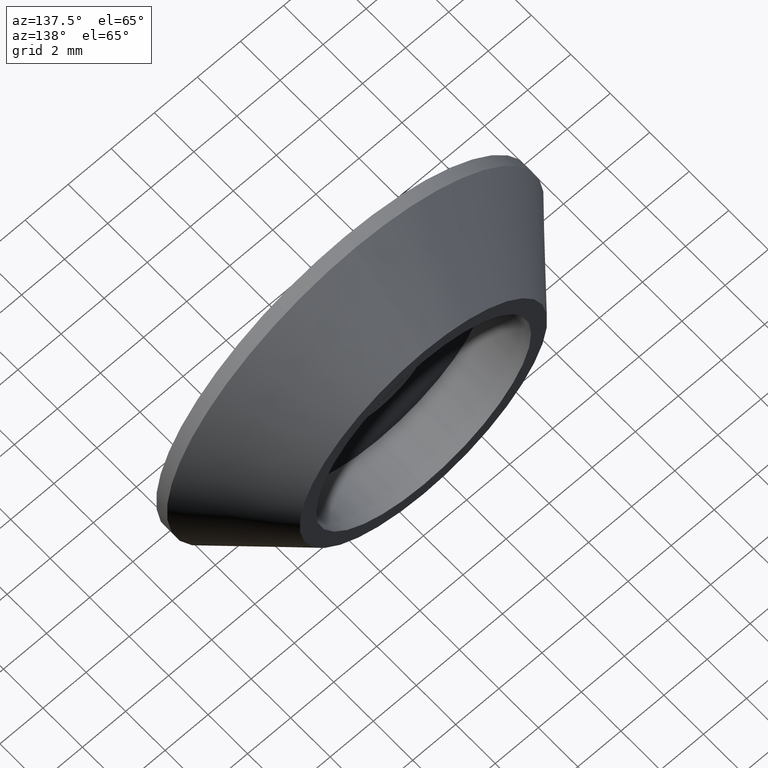
[diagram: clean part render]
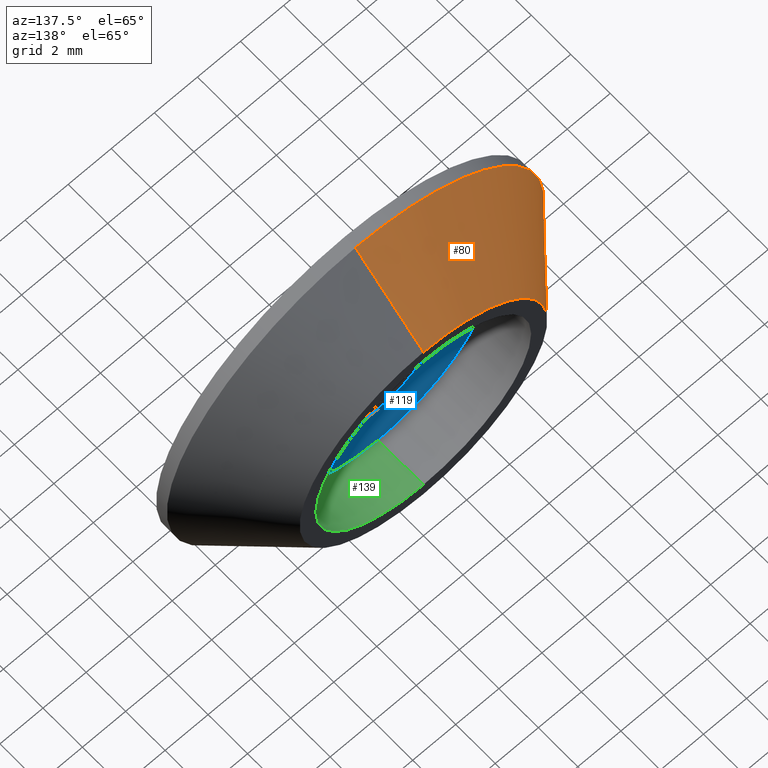
[diagram: same view with three faces highlighted in distinct colors, each labeled with its STEP entity id]
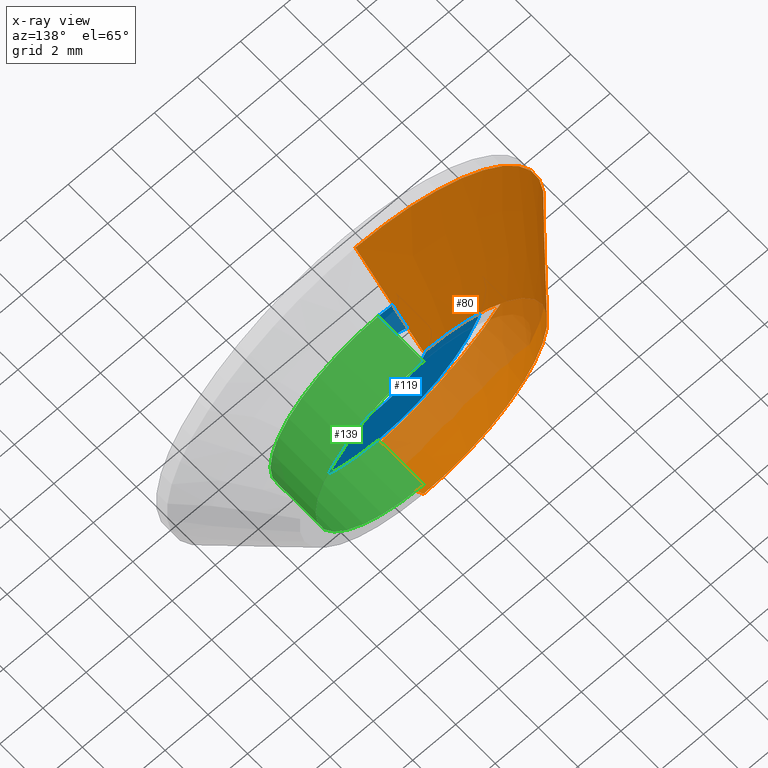
[diagram: x-ray of the same camera — body ghosted, the three highlighted faces saturated]
A machine part, auxiliary view with three faces highlighted in distinct colors.
The next image is the same camera in x-ray (body ghosted, the three faces saturated) — at least one of them is partly hidden behind the body in this view.
Their STEP definitions:

[orange] entity #80 — the highlighted conical surface has half-angle 41.009 deg.
#17 = VERTEX_POINT ( 'NONE', #197 ) ;
#25 = VERTEX_POINT ( 'NONE', #192 ) ;
#26 = VERTEX_POINT ( 'NONE', #185 ) ;
#34 = VERTEX_POINT ( 'NONE', #224 ) ;
#37 = EDGE_CURVE ( 'NONE', #26, #25, #218, .T. ) ;
#39 = EDGE_CURVE ( 'NONE', #17, #34, #60, .T. ) ;
#44 = CIRCLE ( 'NONE', #65, 8.750000000000000000 ) ;
#56 = DIRECTION ( 'NONE',  ( 8.035871629012636900E-017, -0.7546055221635046300, 0.6561787149247867400 ) ) ;
#57 = VECTOR ( 'NONE', #56, 1000.000000000000000 ) ;
#58 = CARTESIAN_POINT ( 'NONE',  ( 7.041719095097280900E-016, 4.000000000000000000, 5.750000000000000000 ) ) ;
#60 = LINE ( 'NONE', #58, #57 ) ;
#62 = VECTOR ( 'NONE', #216, 1000.000000000000000 ) ;
#64 = DIRECTION ( 'NONE',  ( 0.0000000000000000000, -1.000000000000000000, 0.0000000000000000000 ) ) ;
#65 = AXIS2_PLACEMENT_3D ( 'NONE', #83, #228, #227 ) ;
#74 = CIRCLE ( 'NONE', #170, 5.750000000000000000 ) ;
#77 = ORIENTED_EDGE ( 'NONE', *, *, #89, .T. ) ;
#80 = ADVANCED_FACE ( 'NONE', ( #87 ), #85, .T. ) ;
#81 = CARTESIAN_POINT ( 'NONE',  ( 0.0000000000000000000, 4.000000000000000000, 0.0000000000000000000 ) ) ;
#82 = AXIS2_PLACEMENT_3D ( 'NONE', #175, #174, #173 ) ;
#83 = CARTESIAN_POINT ( 'NONE',  ( 0.0000000000000000000, 0.5499999999999983800, 0.0000000000000000000 ) ) ;
#85 = CONICAL_SURFACE ( 'NONE', #82, 5.750000000000000000, 0.7157435896688801900 ) ;
#87 = FACE_OUTER_BOUND ( 'NONE', #151, .T. ) ;
#89 = EDGE_CURVE ( 'NONE', #17, #26, #74, .T. ) ;
#90 = ORIENTED_EDGE ( 'NONE', *, *, #39, .F. ) ;
#92 = ORIENTED_EDGE ( 'NONE', *, *, #37, .T. ) ;
#114 = ORIENTED_EDGE ( 'NONE', *, *, #153, .F. ) ;
#151 = EDGE_LOOP ( 'NONE', ( #90, #77, #92, #114 ) ) ;
#153 = EDGE_CURVE ( 'NONE', #34, #25, #44, .T. ) ;
#169 = DIRECTION ( 'NONE',  ( 0.0000000000000000000, 0.0000000000000000000, -1.000000000000000000 ) ) ;
#170 = AXIS2_PLACEMENT_3D ( 'NONE', #81, #64, #169 ) ;
#173 = DIRECTION ( 'NONE',  ( 0.0000000000000000000, 0.0000000000000000000, -1.000000000000000000 ) ) ;
#174 = DIRECTION ( 'NONE',  ( 0.0000000000000000000, -1.000000000000000000, 0.0000000000000000000 ) ) ;
#175 = CARTESIAN_POINT ( 'NONE',  ( 0.0000000000000000000, 4.000000000000000000, 0.0000000000000000000 ) ) ;
#185 = CARTESIAN_POINT ( 'NONE',  ( 0.0000000000000000000, 4.000000000000000000, -5.750000000000000000 ) ) ;
#192 = CARTESIAN_POINT ( 'NONE',  ( 0.0000000000000000000, 0.5499999999999983800, -8.750000000000000000 ) ) ;
#197 = CARTESIAN_POINT ( 'NONE',  ( 8.878689293818312000E-016, 4.000000000000000000, 5.750000000000000000 ) ) ;
#216 = DIRECTION ( 'NONE',  ( 0.0000000000000000000, -0.7546055221635046300, -0.6561787149247867400 ) ) ;
#217 = CARTESIAN_POINT ( 'NONE',  ( 0.0000000000000000000, 4.000000000000000000, -5.750000000000000000 ) ) ;
#218 = LINE ( 'NONE', #217, #62 ) ;
#224 = CARTESIAN_POINT ( 'NONE',  ( 1.071565949253934100E-015, 0.5499999999999983800, 8.750000000000000000 ) ) ;
#227 = DIRECTION ( 'NONE',  ( 0.0000000000000000000, 0.0000000000000000000, -1.000000000000000000 ) ) ;
#228 = DIRECTION ( 'NONE',  ( 0.0000000000000000000, -1.000000000000000000, 0.0000000000000000000 ) ) ;

[blue] entity #119 — the highlighted planar face has unit normal (0, -1, 0).
#12 = VERTEX_POINT ( 'NONE', #203 ) ;
#19 = VERTEX_POINT ( 'NONE', #107 ) ;
#24 = VERTEX_POINT ( 'NONE', #196 ) ;
#38 = VERTEX_POINT ( 'NONE', #219 ) ;
#40 = EDGE_CURVE ( 'NONE', #19, #24, #191, .T. ) ;
#46 = EDGE_CURVE ( 'NONE', #12, #38, #96, .T. ) ;
#51 = CARTESIAN_POINT ( 'NONE',  ( 0.0000000000000000000, 1.700000000000000200, 0.0000000000000000000 ) ) ;
#68 = DIRECTION ( 'NONE',  ( 0.0000000000000000000, 0.0000000000000000000, -1.000000000000000000 ) ) ;
#69 = DIRECTION ( 'NONE',  ( 0.0000000000000000000, -1.000000000000000000, 0.0000000000000000000 ) ) ;
#70 = CARTESIAN_POINT ( 'NONE',  ( 0.0000000000000000000, 1.700000000000000200, 0.0000000000000000000 ) ) ;
#71 = AXIS2_PLACEMENT_3D ( 'NONE', #70, #69, #68 ) ;
#73 = FACE_BOUND ( 'NONE', #130, .T. ) ;
#96 = CIRCLE ( 'NONE', #71, 5.000000000000000900 ) ;
#97 = DIRECTION ( 'NONE',  ( 0.0000000000000000000, -1.000000000000000000, 0.0000000000000000000 ) ) ;
#107 = CARTESIAN_POINT ( 'NONE',  ( 3.061616997868383100E-016, 1.700000000000000200, 2.500000000000000000 ) ) ;
#119 = ADVANCED_FACE ( 'NONE', ( #171, #73 ), #172, .F. ) ;
#129 = ORIENTED_EDGE ( 'NONE', *, *, #144, .F. ) ;
#130 = EDGE_LOOP ( 'NONE', ( #145, #132 ) ) ;
#131 = ORIENTED_EDGE ( 'NONE', *, *, #46, .F. ) ;
#132 = ORIENTED_EDGE ( 'NONE', *, *, #40, .T. ) ;
#140 = EDGE_LOOP ( 'NONE', ( #129, #131 ) ) ;
#144 = EDGE_CURVE ( 'NONE', #38, #12, #242, .T. ) ;
#145 = ORIENTED_EDGE ( 'NONE', *, *, #182, .T. ) ;
#159 = DIRECTION ( 'NONE',  ( 0.0000000000000000000, 0.0000000000000000000, -1.000000000000000000 ) ) ;
#160 = DIRECTION ( 'NONE',  ( 0.0000000000000000000, -1.000000000000000000, 0.0000000000000000000 ) ) ;
#161 = CARTESIAN_POINT ( 'NONE',  ( -5.000000000000004400, 1.700000000000000200, 0.0000000000000000000 ) ) ;
#162 = AXIS2_PLACEMENT_3D ( 'NONE', #161, #160, #159 ) ;
#171 = FACE_OUTER_BOUND ( 'NONE', #140, .T. ) ;
#172 = PLANE ( 'NONE',  #162 ) ;
#182 = EDGE_CURVE ( 'NONE', #24, #19, #273, .T. ) ;
#186 = DIRECTION ( 'NONE',  ( 0.0000000000000000000, 0.0000000000000000000, -1.000000000000000000 ) ) ;
#191 = CIRCLE ( 'NONE', #223, 2.500000000000000000 ) ;
#196 = CARTESIAN_POINT ( 'NONE',  ( 0.0000000000000000000, 1.700000000000000200, -2.500000000000000000 ) ) ;
#203 = CARTESIAN_POINT ( 'NONE',  ( 6.123233995736767300E-016, 1.700000000000000200, 5.000000000000000900 ) ) ;
#219 = CARTESIAN_POINT ( 'NONE',  ( 0.0000000000000000000, 1.700000000000000200, -5.000000000000000900 ) ) ;
#223 = AXIS2_PLACEMENT_3D ( 'NONE', #51, #97, #186 ) ;
#242 = CIRCLE ( 'NONE', #265, 5.000000000000000900 ) ;
#250 = DIRECTION ( 'NONE',  ( 0.0000000000000000000, 0.0000000000000000000, -1.000000000000000000 ) ) ;
#251 = DIRECTION ( 'NONE',  ( 0.0000000000000000000, -1.000000000000000000, 0.0000000000000000000 ) ) ;
#252 = CARTESIAN_POINT ( 'NONE',  ( 0.0000000000000000000, 1.700000000000000200, 0.0000000000000000000 ) ) ;
#265 = AXIS2_PLACEMENT_3D ( 'NONE', #252, #251, #250 ) ;
#273 = CIRCLE ( 'NONE', #278, 2.500000000000000000 ) ;
#274 = CARTESIAN_POINT ( 'NONE',  ( 0.0000000000000000000, 1.700000000000000200, 0.0000000000000000000 ) ) ;
#276 = DIRECTION ( 'NONE',  ( 0.0000000000000000000, 0.0000000000000000000, -1.000000000000000000 ) ) ;
#277 = DIRECTION ( 'NONE',  ( 0.0000000000000000000, -1.000000000000000000, 0.0000000000000000000 ) ) ;
#278 = AXIS2_PLACEMENT_3D ( 'NONE', #274, #277, #276 ) ;

[green] entity #139 — the highlighted cylindrical surface (partial cylindrical patch) has radius 5 mm, axis along (0, -1, 0).
#1 = EDGE_CURVE ( 'NONE', #4, #12, #210, .T. ) ;
#4 = VERTEX_POINT ( 'NONE', #109 ) ;
#7 = VERTEX_POINT ( 'NONE', #211 ) ;
#12 = VERTEX_POINT ( 'NONE', #203 ) ;
#35 = EDGE_CURVE ( 'NONE', #7, #38, #95, .T. ) ;
#38 = VERTEX_POINT ( 'NONE', #219 ) ;
#95 = LINE ( 'NONE', #222, #221 ) ;
#109 = CARTESIAN_POINT ( 'NONE',  ( 6.123233995736766300E-016, 4.000000000000000000, 5.000000000000000000 ) ) ;
#113 = ORIENTED_EDGE ( 'NONE', *, *, #144, .T. ) ;
#116 = ORIENTED_EDGE ( 'NONE', *, *, #35, .T. ) ;
#133 = EDGE_CURVE ( 'NONE', #7, #4, #230, .T. ) ;
#139 = ADVANCED_FACE ( 'NONE', ( #236 ), #241, .F. ) ;
#143 = ORIENTED_EDGE ( 'NONE', *, *, #133, .F. ) ;
#144 = EDGE_CURVE ( 'NONE', #38, #12, #242, .T. ) ;
#152 = ORIENTED_EDGE ( 'NONE', *, *, #1, .F. ) ;
#154 = EDGE_LOOP ( 'NONE', ( #152, #143, #116, #113 ) ) ;
#203 = CARTESIAN_POINT ( 'NONE',  ( 6.123233995736767300E-016, 1.700000000000000200, 5.000000000000000900 ) ) ;
#207 = DIRECTION ( 'NONE',  ( 0.0000000000000000000, -1.000000000000000000, 0.0000000000000000000 ) ) ;
#208 = VECTOR ( 'NONE', #207, 1000.000000000000000 ) ;
#209 = CARTESIAN_POINT ( 'NONE',  ( 6.123233995736767300E-016, 0.0000000000000000000, 5.000000000000000900 ) ) ;
#210 = LINE ( 'NONE', #209, #208 ) ;
#211 = CARTESIAN_POINT ( 'NONE',  ( 0.0000000000000000000, 4.000000000000000000, -5.000000000000000000 ) ) ;
#219 = CARTESIAN_POINT ( 'NONE',  ( 0.0000000000000000000, 1.700000000000000200, -5.000000000000000900 ) ) ;
#220 = DIRECTION ( 'NONE',  ( 0.0000000000000000000, -1.000000000000000000, 0.0000000000000000000 ) ) ;
#221 = VECTOR ( 'NONE', #220, 1000.000000000000000 ) ;
#222 = CARTESIAN_POINT ( 'NONE',  ( 0.0000000000000000000, 0.0000000000000000000, -5.000000000000000900 ) ) ;
#230 = CIRCLE ( 'NONE', #235, 5.000000000000000000 ) ;
#231 = AXIS2_PLACEMENT_3D ( 'NONE', #239, #257, #256 ) ;
#233 = DIRECTION ( 'NONE',  ( 0.0000000000000000000, -1.000000000000000000, 0.0000000000000000000 ) ) ;
#235 = AXIS2_PLACEMENT_3D ( 'NONE', #254, #233, #271 ) ;
#236 = FACE_OUTER_BOUND ( 'NONE', #154, .T. ) ;
#239 = CARTESIAN_POINT ( 'NONE',  ( 0.0000000000000000000, 0.0000000000000000000, 0.0000000000000000000 ) ) ;
#241 = CYLINDRICAL_SURFACE ( 'NONE', #231, 5.000000000000000900 ) ;
#242 = CIRCLE ( 'NONE', #265, 5.000000000000000900 ) ;
#250 = DIRECTION ( 'NONE',  ( 0.0000000000000000000, 0.0000000000000000000, -1.000000000000000000 ) ) ;
#251 = DIRECTION ( 'NONE',  ( 0.0000000000000000000, -1.000000000000000000, 0.0000000000000000000 ) ) ;
#252 = CARTESIAN_POINT ( 'NONE',  ( 0.0000000000000000000, 1.700000000000000200, 0.0000000000000000000 ) ) ;
#254 = CARTESIAN_POINT ( 'NONE',  ( 0.0000000000000000000, 4.000000000000000000, 0.0000000000000000000 ) ) ;
#256 = DIRECTION ( 'NONE',  ( 0.0000000000000000000, 0.0000000000000000000, -1.000000000000000000 ) ) ;
#257 = DIRECTION ( 'NONE',  ( 0.0000000000000000000, -1.000000000000000000, 0.0000000000000000000 ) ) ;
#265 = AXIS2_PLACEMENT_3D ( 'NONE', #252, #251, #250 ) ;
#271 = DIRECTION ( 'NONE',  ( 0.0000000000000000000, 0.0000000000000000000, -1.000000000000000000 ) ) ;